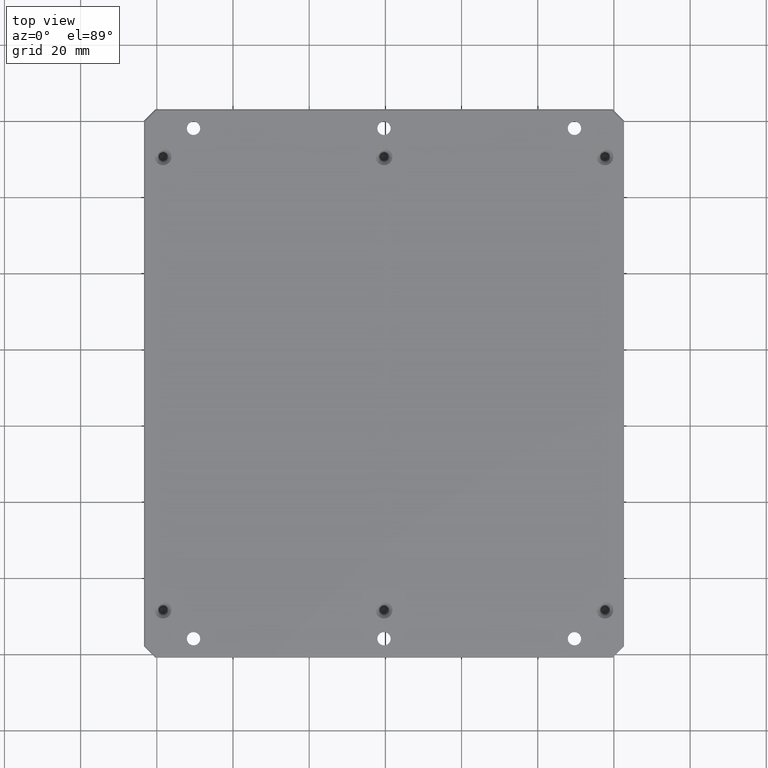
[diagram: clean part render]
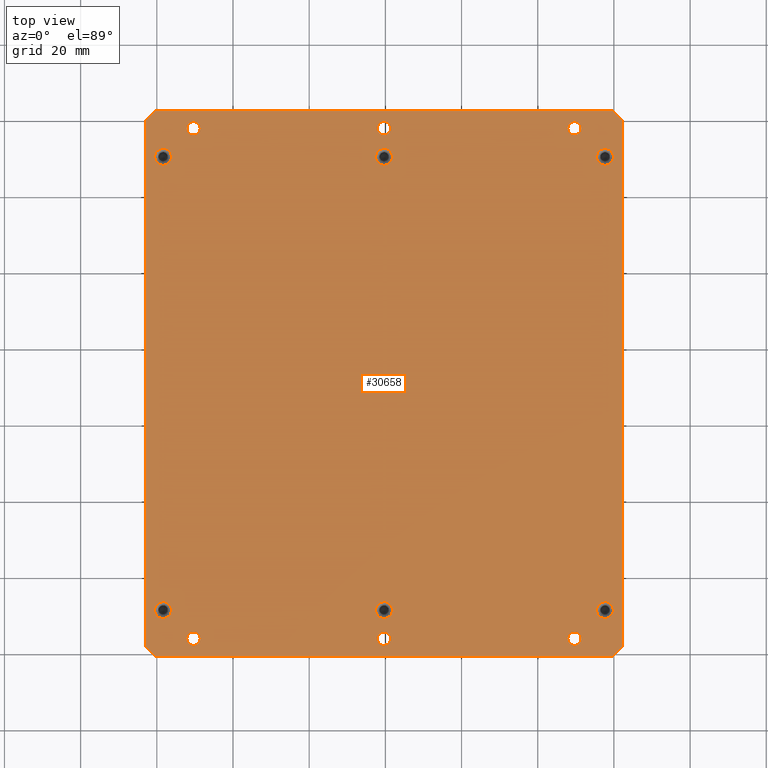
[diagram: same view with one face highlighted and labeled with its STEP entity id]
A machine part, top view. The second image highlights one B-rep face of the part: STEP entity #30658.
In plain terms, the highlighted planar face has unit normal (0, 0, -1).
Its self-contained STEP definition (entity closure, byte-faithful):
#369 = LINE ( 'NONE', #19414, #57661 ) ;
#495 = CIRCLE ( 'NONE', #88703, 2.199999999954772800 ) ;
#516 = EDGE_CURVE ( 'NONE', #23427, #24123, #55156, .T. ) ;
#525 = CARTESIAN_POINT ( 'NONE',  ( 47.89490263459337900, -56.11034746086279100, 12.99999999998362900 ) ) ;
#562 = ORIENTED_EDGE ( 'NONE', *, *, #516, .F. ) ;
#649 = EDGE_CURVE ( 'NONE', #11183, #11592, #41887, .T. ) ;
#2121 = CIRCLE ( 'NONE', #80745, 2.200000000004378900 ) ;
#2669 = EDGE_CURVE ( 'NONE', #17719, #63833, #28514, .T. ) ;
#3384 = FACE_BOUND ( 'NONE', #35318, .T. ) ;
#4174 = DIRECTION ( 'NONE',  ( 1.000000000000000000, 0.0000000000000000000, 0.0000000000000000000 ) ) ;
#4218 = EDGE_LOOP ( 'NONE', ( #74409, #9752 ) ) ;
#4230 = AXIS2_PLACEMENT_3D ( 'NONE', #12245, #33518, #13167 ) ;
#4351 = CIRCLE ( 'NONE', #35480, 1.750000000000001600 ) ;
#4959 = LINE ( 'NONE', #47246, #78888 ) ;
#5200 = CARTESIAN_POINT ( 'NONE',  ( -2.105097365406622100, -56.11034746086279800, 12.99999999998362900 ) ) ;
#5596 = FACE_BOUND ( 'NONE', #12824, .T. ) ;
#6559 = DIRECTION ( 'NONE',  ( -0.7071067811865463500, 0.7071067811865486800, 0.0000000000000000000 ) ) ;
#6693 = LINE ( 'NONE', #51389, #63950 ) ;
#6706 = DIRECTION ( 'NONE',  ( 0.0000000000000000000, 0.0000000000000000000, -1.000000000000000000 ) ) ;
#6741 = EDGE_CURVE ( 'NONE', #21994, #14277, #68914, .T. ) ;
#7127 = CARTESIAN_POINT ( 'NONE',  ( -2.105097365406622100, 77.88965253913718800, 12.99999999998362900 ) ) ;
#7180 = CARTESIAN_POINT ( 'NONE',  ( -58.35509736540660700, -48.61034746086278300, 12.99999999993633500 ) ) ;
#7252 = CARTESIAN_POINT ( 'NONE',  ( -50.35509736540662100, -56.11034746086280500, 12.99999999998362900 ) ) ;
#8252 = ORIENTED_EDGE ( 'NONE', *, *, #72032, .T. ) ;
#8553 = EDGE_LOOP ( 'NONE', ( #41610, #85442 ) ) ;
#8833 = CARTESIAN_POINT ( 'NONE',  ( -0.3550973654066202900, -56.11034746086279800, 12.99999999998362900 ) ) ;
#9030 = EDGE_CURVE ( 'NONE', #52962, #44857, #67121, .T. ) ;
#9059 = CARTESIAN_POINT ( 'NONE',  ( -60.23083329669466900, -60.81034746086277200, 12.99999999998363300 ) ) ;
#9181 = DIRECTION ( 'NONE',  ( 0.7071067811865504600, 0.7071067811865445800, 0.0000000000000000000 ) ) ;
#9531 = EDGE_LOOP ( 'NONE', ( #47013, #62838 ) ) ;
#9752 = ORIENTED_EDGE ( 'NONE', *, *, #87658, .T. ) ;
#9891 = EDGE_CURVE ( 'NONE', #11592, #11183, #495, .T. ) ;
#9952 = CARTESIAN_POINT ( 'NONE',  ( -58.35509736540660700, 70.38965253913731600, 12.99999999993633500 ) ) ;
#10198 = CARTESIAN_POINT ( 'NONE',  ( 59.52063856588142700, -60.81034746086277200, 12.99999999998363300 ) ) ;
#10261 = DIRECTION ( 'NONE',  ( 1.000000000000000000, 0.0000000000000000000, 0.0000000000000000000 ) ) ;
#10829 = CARTESIAN_POINT ( 'NONE',  ( 55.44490263459626800, 70.38965253913708900, 12.99999999987949200 ) ) ;
#11183 = VERTEX_POINT ( 'NONE', #24277 ) ;
#11592 = VERTEX_POINT ( 'NONE', #15919 ) ;
#11637 = EDGE_CURVE ( 'NONE', #12929, #17258, #16940, .T. ) ;
#11733 = VERTEX_POINT ( 'NONE', #30945 ) ;
#11817 = DIRECTION ( 'NONE',  ( 0.0000000000000000000, 0.0000000000000000000, -1.000000000000000000 ) ) ;
#11824 = CIRCLE ( 'NONE', #36032, 2.200000000004351400 ) ;
#11853 = CARTESIAN_POINT ( 'NONE',  ( 55.44490263459626800, -48.61034746086282600, 12.99999999987949200 ) ) ;
#12245 = CARTESIAN_POINT ( 'NONE',  ( -50.35509736540662100, -56.11034746086280500, 12.99999999998362900 ) ) ;
#12824 = EDGE_LOOP ( 'NONE', ( #68040, #26392 ) ) ;
#12929 = VERTEX_POINT ( 'NONE', #10829 ) ;
#13167 = DIRECTION ( 'NONE',  ( 1.000000000000000000, 0.0000000000000000000, 0.0000000000000000000 ) ) ;
#13826 = LINE ( 'NONE', #42278, #77727 ) ;
#13980 = ORIENTED_EDGE ( 'NONE', *, *, #86448, .F. ) ;
#14277 = VERTEX_POINT ( 'NONE', #32782 ) ;
#14952 = ORIENTED_EDGE ( 'NONE', *, *, #86415, .T. ) ;
#15531 = FACE_BOUND ( 'NONE', #49745, .T. ) ;
#15542 = VERTEX_POINT ( 'NONE', #77123 ) ;
#15803 = DIRECTION ( 'NONE',  ( -0.0000000000000000000, 0.0000000000000000000, -1.000000000000000000 ) ) ;
#15919 = CARTESIAN_POINT ( 'NONE',  ( -60.55509736536138400, 70.38965253913731600, 12.99999999993633500 ) ) ;
#16223 = EDGE_CURVE ( 'NONE', #17258, #12929, #41780, .T. ) ;
#16842 = VERTEX_POINT ( 'NONE', #20751 ) ;
#16865 = CIRCLE ( 'NONE', #54542, 2.199999999954772800 ) ;
#16940 = CIRCLE ( 'NONE', #49845, 2.199999999997093200 ) ;
#17049 = CIRCLE ( 'NONE', #48713, 1.750000000000001600 ) ;
#17055 = CARTESIAN_POINT ( 'NONE',  ( 59.52063856588145500, 82.58965253913716300, 12.99999999998362700 ) ) ;
#17258 = VERTEX_POINT ( 'NONE', #69089 ) ;
#17414 = AXIS2_PLACEMENT_3D ( 'NONE', #54201, #82563, #25856 ) ;
#17425 = AXIS2_PLACEMENT_3D ( 'NONE', #8833, #65179, #23595 ) ;
#17719 = VERTEX_POINT ( 'NONE', #5200 ) ;
#17834 = DIRECTION ( 'NONE',  ( 1.000000000000000000, 0.0000000000000000000, 0.0000000000000000000 ) ) ;
#18160 = CARTESIAN_POINT ( 'NONE',  ( -0.3550973654066202900, -56.11034746086279800, 12.99999999998362900 ) ) ;
#18241 = CARTESIAN_POINT ( 'NONE',  ( -0.3550973654066202900, 77.88965253913718800, 12.99999999998362900 ) ) ;
#18352 = DIRECTION ( 'NONE',  ( -0.0000000000000000000, 0.0000000000000000000, -1.000000000000000000 ) ) ;
#18536 = VERTEX_POINT ( 'NONE', #31792 ) ;
#18557 = VERTEX_POINT ( 'NONE', #17055 ) ;
#18681 = CARTESIAN_POINT ( 'NONE',  ( 1.394902634593381300, 77.88965253913718800, 12.99999999998362900 ) ) ;
#19030 = DIRECTION ( 'NONE',  ( -0.0000000000000000000, 0.0000000000000000000, -1.000000000000000000 ) ) ;
#19414 = CARTESIAN_POINT ( 'NONE',  ( 59.52063856588141300, 82.58965253913716300, 12.99999999998362900 ) ) ;
#19561 = DIRECTION ( 'NONE',  ( -0.0000000000000000000, 0.0000000000000000000, -1.000000000000000000 ) ) ;
#19595 = DIRECTION ( 'NONE',  ( 0.0000000000000000000, 0.0000000000000000000, -1.000000000000000000 ) ) ;
#19900 = PLANE ( 'NONE',  #33013 ) ;
#20147 = VERTEX_POINT ( 'NONE', #37037 ) ;
#20751 = CARTESIAN_POINT ( 'NONE',  ( -60.55509736536138400, -48.61034746086278300, 12.99999999993633500 ) ) ;
#21018 = CARTESIAN_POINT ( 'NONE',  ( -0.3550973654066202900, 77.88965253913718800, 12.99999999998362900 ) ) ;
#21153 = DIRECTION ( 'NONE',  ( 0.0000000000000000000, 0.0000000000000000000, -1.000000000000000000 ) ) ;
#21994 = VERTEX_POINT ( 'NONE', #82291 ) ;
#22089 = FACE_BOUND ( 'NONE', #8553, .T. ) ;
#22210 = DIRECTION ( 'NONE',  ( 1.000000000000000000, 0.0000000000000000000, 0.0000000000000000000 ) ) ;
#23427 = VERTEX_POINT ( 'NONE', #65639 ) ;
#23548 = CIRCLE ( 'NONE', #4230, 1.749999999999994700 ) ;
#23595 = DIRECTION ( 'NONE',  ( 1.000000000000000000, 0.0000000000000000000, 0.0000000000000000000 ) ) ;
#24123 = VERTEX_POINT ( 'NONE', #10198 ) ;
#24214 = CARTESIAN_POINT ( 'NONE',  ( -58.35509736540660700, -48.61034746086278300, 12.99999999993633500 ) ) ;
#24251 = VERTEX_POINT ( 'NONE', #32939 ) ;
#24277 = CARTESIAN_POINT ( 'NONE',  ( -56.15509736545183700, 70.38965253913731600, 12.99999999993633500 ) ) ;
#25025 = ORIENTED_EDGE ( 'NONE', *, *, #2669, .T. ) ;
#25107 = DIRECTION ( 'NONE',  ( 1.000000000000000000, 0.0000000000000000000, 0.0000000000000000000 ) ) ;
#25324 = DIRECTION ( 'NONE',  ( 0.0000000000000000000, 0.0000000000000000000, -1.000000000000000000 ) ) ;
#25407 = ORIENTED_EDGE ( 'NONE', *, *, #89159, .T. ) ;
#25543 = CARTESIAN_POINT ( 'NONE',  ( 1.394902634593381300, -56.11034746086279800, 12.99999999998362900 ) ) ;
#25633 = EDGE_LOOP ( 'NONE', ( #25407, #49463 ) ) ;
#25856 = DIRECTION ( 'NONE',  ( 1.000000000000000000, 0.0000000000000000000, 0.0000000000000000000 ) ) ;
#26081 = ORIENTED_EDGE ( 'NONE', *, *, #80218, .T. ) ;
#26350 = AXIS2_PLACEMENT_3D ( 'NONE', #39913, #19030, #61796 ) ;
#26392 = ORIENTED_EDGE ( 'NONE', *, *, #77639, .T. ) ;
#27096 = CIRCLE ( 'NONE', #85438, 1.749999999999994700 ) ;
#27783 = CARTESIAN_POINT ( 'NONE',  ( -60.23083329669466900, -60.81034746086277200, 12.99999999998362900 ) ) ;
#27792 = DIRECTION ( 'NONE',  ( 1.000000000000000000, 0.0000000000000000000, 0.0000000000000000000 ) ) ;
#27946 = DIRECTION ( 'NONE',  ( 1.000000000000000000, 0.0000000000000000000, 0.0000000000000000000 ) ) ;
#28514 = CIRCLE ( 'NONE', #55265, 1.750000000000001600 ) ;
#28598 = VECTOR ( 'NONE', #29247, 1000.000000000000100 ) ;
#29229 = CIRCLE ( 'NONE', #63398, 2.199999999954772800 ) ;
#29247 = DIRECTION ( 'NONE',  ( -0.7071067811865492400, -0.7071067811865458000, 0.0000000000000000000 ) ) ;
#30323 = CIRCLE ( 'NONE', #77356, 1.750000000000001600 ) ;
#30336 = VERTEX_POINT ( 'NONE', #45517 ) ;
#30658 = ADVANCED_FACE ( 'NONE', ( #33181, #5596, #78371, #3384, #22089, #37570, #57363, #36426, #71696, #54147, #15531, #88353, #35392 ), #19900, .F. ) ;
#30750 = AXIS2_PLACEMENT_3D ( 'NONE', #74960, #11817, #82986 ) ;
#30945 = CARTESIAN_POINT ( 'NONE',  ( 62.34490263459334600, 79.76538847042525000, 12.99999999998362700 ) ) ;
#31467 = ORIENTED_EDGE ( 'NONE', *, *, #6741, .T. ) ;
#31792 = CARTESIAN_POINT ( 'NONE',  ( -48.60509736540662800, 77.88965253913718800, 12.99999999998362900 ) ) ;
#31983 = DIRECTION ( 'NONE',  ( 0.0000000000000000000, 0.0000000000000000000, -1.000000000000000000 ) ) ;
#32065 = VECTOR ( 'NONE', #70545, 1000.000000000000000 ) ;
#32324 = EDGE_LOOP ( 'NONE', ( #562, #44186, #62072, #64663, #33486, #14952, #61483, #13980 ) ) ;
#32369 = VERTEX_POINT ( 'NONE', #7127 ) ;
#32612 = DIRECTION ( 'NONE',  ( 0.0000000000000000000, 0.0000000000000000000, -1.000000000000000000 ) ) ;
#32782 = CARTESIAN_POINT ( 'NONE',  ( 47.89490263459335000, 77.88965253913718800, 12.99999999998362900 ) ) ;
#32820 = CARTESIAN_POINT ( 'NONE',  ( -0.3550973654066202900, 70.38965253913720200, 13.00000000005002200 ) ) ;
#32885 = ORIENTED_EDGE ( 'NONE', *, *, #649, .T. ) ;
#32939 = CARTESIAN_POINT ( 'NONE',  ( -63.05509736540659600, 79.76538847042525000, 12.99999999998362600 ) ) ;
#33013 = AXIS2_PLACEMENT_3D ( 'NONE', #90813, #19595, #61462 ) ;
#33181 = FACE_BOUND ( 'NONE', #37632, .T. ) ;
#33318 = EDGE_CURVE ( 'NONE', #37282, #48421, #42179, .T. ) ;
#33486 = ORIENTED_EDGE ( 'NONE', *, *, #34738, .F. ) ;
#33518 = DIRECTION ( 'NONE',  ( 0.0000000000000000000, 0.0000000000000000000, -1.000000000000000000 ) ) ;
#33587 = DIRECTION ( 'NONE',  ( 1.000000000000000000, 0.0000000000000000000, 0.0000000000000000000 ) ) ;
#33733 = ORIENTED_EDGE ( 'NONE', *, *, #60571, .T. ) ;
#34077 = EDGE_CURVE ( 'NONE', #20147, #15542, #2121, .T. ) ;
#34314 = DIRECTION ( 'NONE',  ( -0.0000000000000000000, 0.0000000000000000000, -1.000000000000000000 ) ) ;
#34417 = CIRCLE ( 'NONE', #26350, 2.199999999997093200 ) ;
#34738 = EDGE_CURVE ( 'NONE', #24251, #85020, #6693, .T. ) ;
#35018 = DIRECTION ( 'NONE',  ( 0.0000000000000000000, 0.0000000000000000000, -1.000000000000000000 ) ) ;
#35217 = DIRECTION ( 'NONE',  ( -1.000000000000000000, 0.0000000000000000000, -0.0000000000000000000 ) ) ;
#35318 = EDGE_LOOP ( 'NONE', ( #72725, #46803 ) ) ;
#35392 = FACE_OUTER_BOUND ( 'NONE', #32324, .T. ) ;
#35480 = AXIS2_PLACEMENT_3D ( 'NONE', #46159, #31983, #17834 ) ;
#36032 = AXIS2_PLACEMENT_3D ( 'NONE', #32820, #19561, #82163 ) ;
#36426 = FACE_BOUND ( 'NONE', #40000, .T. ) ;
#36604 = CARTESIAN_POINT ( 'NONE',  ( -63.35509736540663500, 82.58965253913716300, 12.99999999998362900 ) ) ;
#36897 = DIRECTION ( 'NONE',  ( 1.000000000000000000, -0.0000000000000000000, 0.0000000000000000000 ) ) ;
#37037 = CARTESIAN_POINT ( 'NONE',  ( 1.844902634597731100, -48.61034746086278300, 13.00000000005002200 ) ) ;
#37282 = VERTEX_POINT ( 'NONE', #84082 ) ;
#37570 = FACE_BOUND ( 'NONE', #72657, .T. ) ;
#37632 = EDGE_LOOP ( 'NONE', ( #8252, #54964 ) ) ;
#37690 = EDGE_CURVE ( 'NONE', #53410, #80465, #77930, .T. ) ;
#38192 = DIRECTION ( 'NONE',  ( -0.0000000000000000000, 0.0000000000000000000, -1.000000000000000000 ) ) ;
#38497 = VERTEX_POINT ( 'NONE', #78387 ) ;
#39006 = EDGE_CURVE ( 'NONE', #23427, #11733, #69550, .T. ) ;
#39913 = CARTESIAN_POINT ( 'NONE',  ( 57.64490263459336500, -48.61034746086282600, 12.99999999987949200 ) ) ;
#40000 = EDGE_LOOP ( 'NONE', ( #76276, #25025 ) ) ;
#40253 = DIRECTION ( 'NONE',  ( 1.000000000000000000, 0.0000000000000000000, 0.0000000000000000000 ) ) ;
#40798 = CARTESIAN_POINT ( 'NONE',  ( 59.84490263459045400, -48.61034746086282600, 12.99999999987949200 ) ) ;
#41610 = ORIENTED_EDGE ( 'NONE', *, *, #73821, .T. ) ;
#41780 = CIRCLE ( 'NONE', #70420, 2.199999999997093200 ) ;
#41887 = CIRCLE ( 'NONE', #91085, 2.199999999954772800 ) ;
#41981 = DIRECTION ( 'NONE',  ( 0.0000000000000000000, 0.0000000000000000000, -1.000000000000000000 ) ) ;
#42179 = CIRCLE ( 'NONE', #77714, 1.749999999999994700 ) ;
#42239 = EDGE_CURVE ( 'NONE', #63833, #17719, #65263, .T. ) ;
#42278 = CARTESIAN_POINT ( 'NONE',  ( -63.35509736540663500, -60.81034746086277200, 12.99999999998362900 ) ) ;
#42990 = CIRCLE ( 'NONE', #46843, 1.750000000000001600 ) ;
#43417 = ORIENTED_EDGE ( 'NONE', *, *, #9891, .T. ) ;
#43701 = VERTEX_POINT ( 'NONE', #81501 ) ;
#44186 = ORIENTED_EDGE ( 'NONE', *, *, #39006, .T. ) ;
#44738 = VERTEX_POINT ( 'NONE', #18681 ) ;
#44857 = VERTEX_POINT ( 'NONE', #40798 ) ;
#45517 = CARTESIAN_POINT ( 'NONE',  ( 51.39490263459338600, -56.11034746086279100, 12.99999999998362900 ) ) ;
#45653 = AXIS2_PLACEMENT_3D ( 'NONE', #47697, #75430, #40253 ) ;
#45755 = CARTESIAN_POINT ( 'NONE',  ( 57.64490263459336500, 70.38965253913708900, 12.99999999987949200 ) ) ;
#46159 = CARTESIAN_POINT ( 'NONE',  ( 49.64490263459338600, -56.11034746086279100, 12.99999999998362900 ) ) ;
#46803 = ORIENTED_EDGE ( 'NONE', *, *, #11637, .T. ) ;
#46843 = AXIS2_PLACEMENT_3D ( 'NONE', #69874, #21153, #76967 ) ;
#46882 = AXIS2_PLACEMENT_3D ( 'NONE', #48915, #6706, #27946 ) ;
#47013 = ORIENTED_EDGE ( 'NONE', *, *, #88771, .T. ) ;
#47246 = CARTESIAN_POINT ( 'NONE',  ( -63.05509736540659600, 82.88965253913721700, 12.99999999998362600 ) ) ;
#47697 = CARTESIAN_POINT ( 'NONE',  ( -0.3550973654066480500, -48.61034746086278300, 13.00000000005002200 ) ) ;
#48147 = DIRECTION ( 'NONE',  ( -0.0000000000000000000, -1.000000000000000000, -0.0000000000000000000 ) ) ;
#48421 = VERTEX_POINT ( 'NONE', #61493 ) ;
#48713 = AXIS2_PLACEMENT_3D ( 'NONE', #18241, #25324, #53954 ) ;
#48915 = CARTESIAN_POINT ( 'NONE',  ( 49.64490263459335800, 77.88965253913718800, 12.99999999998362900 ) ) ;
#49463 = ORIENTED_EDGE ( 'NONE', *, *, #86435, .T. ) ;
#49745 = EDGE_LOOP ( 'NONE', ( #31467, #33733 ) ) ;
#49845 = AXIS2_PLACEMENT_3D ( 'NONE', #45755, #66372, #25107 ) ;
#51389 = CARTESIAN_POINT ( 'NONE',  ( -63.05509736540661000, 79.76538847042525000, 12.99999999998362900 ) ) ;
#52962 = VERTEX_POINT ( 'NONE', #11853 ) ;
#53020 = CARTESIAN_POINT ( 'NONE',  ( -60.23083329669466900, 82.58965253913716300, 12.99999999998362900 ) ) ;
#53272 = DIRECTION ( 'NONE',  ( 1.000000000000000000, 0.0000000000000000000, 0.0000000000000000000 ) ) ;
#53334 = AXIS2_PLACEMENT_3D ( 'NONE', #76421, #84120, #33587 ) ;
#53410 = VERTEX_POINT ( 'NONE', #78973 ) ;
#53954 = DIRECTION ( 'NONE',  ( 1.000000000000000000, 0.0000000000000000000, 0.0000000000000000000 ) ) ;
#54147 = FACE_BOUND ( 'NONE', #4218, .T. ) ;
#54201 = CARTESIAN_POINT ( 'NONE',  ( -0.3550973654066202900, 70.38965253913720200, 13.00000000005002200 ) ) ;
#54277 = EDGE_CURVE ( 'NONE', #18536, #38497, #85975, .T. ) ;
#54478 = CIRCLE ( 'NONE', #45653, 2.200000000004378900 ) ;
#54542 = AXIS2_PLACEMENT_3D ( 'NONE', #24214, #18352, #4174 ) ;
#54779 = CARTESIAN_POINT ( 'NONE',  ( 57.64490263459336500, -48.61034746086282600, 12.99999999987949200 ) ) ;
#54813 = ORIENTED_EDGE ( 'NONE', *, *, #59485, .T. ) ;
#54964 = ORIENTED_EDGE ( 'NONE', *, *, #9030, .T. ) ;
#55156 = LINE ( 'NONE', #57585, #28598 ) ;
#55265 = AXIS2_PLACEMENT_3D ( 'NONE', #18160, #32612, #53272 ) ;
#56956 = CARTESIAN_POINT ( 'NONE',  ( 62.34490263459334600, 82.88965253913721700, 12.99999999998362900 ) ) ;
#57363 = FACE_BOUND ( 'NONE', #25633, .T. ) ;
#57585 = CARTESIAN_POINT ( 'NONE',  ( 62.34490263459334600, -57.98608339215085300, 12.99999999998362900 ) ) ;
#57661 = VECTOR ( 'NONE', #68708, 1000.000000000000100 ) ;
#58494 = DIRECTION ( 'NONE',  ( 1.000000000000000000, 0.0000000000000000000, 0.0000000000000000000 ) ) ;
#58577 = DIRECTION ( 'NONE',  ( -0.0000000000000000000, 0.0000000000000000000, -1.000000000000000000 ) ) ;
#58657 = EDGE_LOOP ( 'NONE', ( #86873, #54813 ) ) ;
#59295 = CARTESIAN_POINT ( 'NONE',  ( 1.844902634597731100, 70.38965253913720200, 13.00000000005002200 ) ) ;
#59485 = EDGE_CURVE ( 'NONE', #48421, #37282, #23548, .T. ) ;
#60571 = EDGE_CURVE ( 'NONE', #14277, #21994, #42990, .T. ) ;
#61462 = DIRECTION ( 'NONE',  ( -1.000000000000000000, 0.0000000000000000000, -0.0000000000000000000 ) ) ;
#61483 = ORIENTED_EDGE ( 'NONE', *, *, #66691, .F. ) ;
#61493 = CARTESIAN_POINT ( 'NONE',  ( -52.10509736540662100, -56.11034746086280500, 12.99999999998362900 ) ) ;
#61796 = DIRECTION ( 'NONE',  ( 1.000000000000000000, 0.0000000000000000000, 0.0000000000000000000 ) ) ;
#61842 = DIRECTION ( 'NONE',  ( -0.0000000000000000000, 0.0000000000000000000, -1.000000000000000000 ) ) ;
#62072 = ORIENTED_EDGE ( 'NONE', *, *, #84001, .F. ) ;
#62838 = ORIENTED_EDGE ( 'NONE', *, *, #78004, .T. ) ;
#63355 = VERTEX_POINT ( 'NONE', #90380 ) ;
#63398 = AXIS2_PLACEMENT_3D ( 'NONE', #7180, #34314, #69751 ) ;
#63821 = LINE ( 'NONE', #27783, #73784 ) ;
#63833 = VERTEX_POINT ( 'NONE', #25543 ) ;
#63950 = VECTOR ( 'NONE', #9181, 1000.000000000000100 ) ;
#64663 = ORIENTED_EDGE ( 'NONE', *, *, #87970, .F. ) ;
#65179 = DIRECTION ( 'NONE',  ( 0.0000000000000000000, 0.0000000000000000000, -1.000000000000000000 ) ) ;
#65263 = CIRCLE ( 'NONE', #17425, 1.750000000000001600 ) ;
#65639 = CARTESIAN_POINT ( 'NONE',  ( 62.34490263459334600, -57.98608339215086700, 12.99999999998362900 ) ) ;
#66372 = DIRECTION ( 'NONE',  ( -0.0000000000000000000, 0.0000000000000000000, -1.000000000000000000 ) ) ;
#66691 = EDGE_CURVE ( 'NONE', #79179, #63355, #63821, .T. ) ;
#67121 = CIRCLE ( 'NONE', #88040, 2.199999999997093200 ) ;
#68040 = ORIENTED_EDGE ( 'NONE', *, *, #34077, .T. ) ;
#68708 = DIRECTION ( 'NONE',  ( 0.7071067811865492400, -0.7071067811865458000, 0.0000000000000000000 ) ) ;
#68914 = CIRCLE ( 'NONE', #46882, 1.750000000000001600 ) ;
#69089 = CARTESIAN_POINT ( 'NONE',  ( 59.84490263459045400, 70.38965253913708900, 12.99999999987949200 ) ) ;
#69266 = DIRECTION ( 'NONE',  ( -0.0000000000000000000, 0.0000000000000000000, -1.000000000000000000 ) ) ;
#69550 = LINE ( 'NONE', #56956, #32065 ) ;
#69751 = DIRECTION ( 'NONE',  ( 1.000000000000000000, 0.0000000000000000000, 0.0000000000000000000 ) ) ;
#69874 = CARTESIAN_POINT ( 'NONE',  ( 49.64490263459335800, 77.88965253913718800, 12.99999999998362900 ) ) ;
#70420 = AXIS2_PLACEMENT_3D ( 'NONE', #76359, #69266, #90882 ) ;
#70545 = DIRECTION ( 'NONE',  ( 0.0000000000000000000, 1.000000000000000000, 0.0000000000000000000 ) ) ;
#71696 = FACE_BOUND ( 'NONE', #58657, .T. ) ;
#72032 = EDGE_CURVE ( 'NONE', #44857, #52962, #34417, .T. ) ;
#72657 = EDGE_LOOP ( 'NONE', ( #32885, #43417 ) ) ;
#72725 = ORIENTED_EDGE ( 'NONE', *, *, #16223, .T. ) ;
#73784 = VECTOR ( 'NONE', #6559, 1000.000000000000100 ) ;
#73821 = EDGE_CURVE ( 'NONE', #80465, #53410, #11824, .T. ) ;
#74409 = ORIENTED_EDGE ( 'NONE', *, *, #82522, .T. ) ;
#74960 = CARTESIAN_POINT ( 'NONE',  ( -50.35509736540662100, 77.88965253913718800, 12.99999999998362900 ) ) ;
#75430 = DIRECTION ( 'NONE',  ( -0.0000000000000000000, 0.0000000000000000000, -1.000000000000000000 ) ) ;
#76276 = ORIENTED_EDGE ( 'NONE', *, *, #42239, .T. ) ;
#76359 = CARTESIAN_POINT ( 'NONE',  ( 57.64490263459336500, 70.38965253913708900, 12.99999999987949200 ) ) ;
#76421 = CARTESIAN_POINT ( 'NONE',  ( 49.64490263459338600, -56.11034746086279100, 12.99999999998362900 ) ) ;
#76967 = DIRECTION ( 'NONE',  ( 1.000000000000000000, 0.0000000000000000000, 0.0000000000000000000 ) ) ;
#77123 = CARTESIAN_POINT ( 'NONE',  ( -2.555097365411027200, -48.61034746086278300, 13.00000000005002200 ) ) ;
#77356 = AXIS2_PLACEMENT_3D ( 'NONE', #21018, #41981, #27792 ) ;
#77639 = EDGE_CURVE ( 'NONE', #15542, #20147, #54478, .T. ) ;
#77714 = AXIS2_PLACEMENT_3D ( 'NONE', #7252, #35018, #84321 ) ;
#77727 = VECTOR ( 'NONE', #35217, 1000.000000000000000 ) ;
#77930 = CIRCLE ( 'NONE', #17414, 2.200000000004351400 ) ;
#78004 = EDGE_CURVE ( 'NONE', #16842, #43701, #16865, .T. ) ;
#78371 = FACE_BOUND ( 'NONE', #9531, .T. ) ;
#78387 = CARTESIAN_POINT ( 'NONE',  ( -52.10509736540662100, 77.88965253913718800, 12.99999999998362900 ) ) ;
#78645 = CARTESIAN_POINT ( 'NONE',  ( -0.3550973654066480500, -48.61034746086278300, 13.00000000005002200 ) ) ;
#78888 = VECTOR ( 'NONE', #48147, 1000.000000000000000 ) ;
#78973 = CARTESIAN_POINT ( 'NONE',  ( -2.555097365410971700, 70.38965253913720200, 13.00000000005002200 ) ) ;
#79179 = VERTEX_POINT ( 'NONE', #9059 ) ;
#80218 = EDGE_CURVE ( 'NONE', #38497, #18536, #27096, .T. ) ;
#80465 = VERTEX_POINT ( 'NONE', #59295 ) ;
#80745 = AXIS2_PLACEMENT_3D ( 'NONE', #78645, #15803, #22210 ) ;
#81501 = CARTESIAN_POINT ( 'NONE',  ( -56.15509736545183700, -48.61034746086278300, 12.99999999993633500 ) ) ;
#82163 = DIRECTION ( 'NONE',  ( 1.000000000000000000, 0.0000000000000000000, 0.0000000000000000000 ) ) ;
#82291 = CARTESIAN_POINT ( 'NONE',  ( 51.39490263459335800, 77.88965253913718800, 12.99999999998362900 ) ) ;
#82341 = ORIENTED_EDGE ( 'NONE', *, *, #54277, .T. ) ;
#82522 = EDGE_CURVE ( 'NONE', #30336, #85385, #4351, .T. ) ;
#82563 = DIRECTION ( 'NONE',  ( -0.0000000000000000000, 0.0000000000000000000, -1.000000000000000000 ) ) ;
#82986 = DIRECTION ( 'NONE',  ( 1.000000000000000000, 0.0000000000000000000, 0.0000000000000000000 ) ) ;
#83140 = DIRECTION ( 'NONE',  ( 1.000000000000000000, 0.0000000000000000000, 0.0000000000000000000 ) ) ;
#84001 = EDGE_CURVE ( 'NONE', #18557, #11733, #369, .T. ) ;
#84054 = CARTESIAN_POINT ( 'NONE',  ( -50.35509736540662100, 77.88965253913718800, 12.99999999998362900 ) ) ;
#84056 = DIRECTION ( 'NONE',  ( 1.000000000000000000, 0.0000000000000000000, 0.0000000000000000000 ) ) ;
#84082 = CARTESIAN_POINT ( 'NONE',  ( -48.60509736540662800, -56.11034746086280500, 12.99999999998362900 ) ) ;
#84120 = DIRECTION ( 'NONE',  ( 0.0000000000000000000, 0.0000000000000000000, -1.000000000000000000 ) ) ;
#84321 = DIRECTION ( 'NONE',  ( 1.000000000000000000, 0.0000000000000000000, 0.0000000000000000000 ) ) ;
#85020 = VERTEX_POINT ( 'NONE', #53020 ) ;
#85385 = VERTEX_POINT ( 'NONE', #525 ) ;
#85438 = AXIS2_PLACEMENT_3D ( 'NONE', #84054, #91504, #83140 ) ;
#85442 = ORIENTED_EDGE ( 'NONE', *, *, #37690, .T. ) ;
#85975 = CIRCLE ( 'NONE', #30750, 1.749999999999994700 ) ;
#85983 = EDGE_LOOP ( 'NONE', ( #82341, #26081 ) ) ;
#86415 = EDGE_CURVE ( 'NONE', #24251, #63355, #4959, .T. ) ;
#86435 = EDGE_CURVE ( 'NONE', #32369, #44738, #30323, .T. ) ;
#86448 = EDGE_CURVE ( 'NONE', #24123, #79179, #13826, .T. ) ;
#86873 = ORIENTED_EDGE ( 'NONE', *, *, #33318, .T. ) ;
#87055 = CIRCLE ( 'NONE', #53334, 1.750000000000001600 ) ;
#87658 = EDGE_CURVE ( 'NONE', #85385, #30336, #87055, .T. ) ;
#87887 = CARTESIAN_POINT ( 'NONE',  ( -58.35509736540660700, 70.38965253913731600, 12.99999999993633500 ) ) ;
#87970 = EDGE_CURVE ( 'NONE', #85020, #18557, #91318, .T. ) ;
#88040 = AXIS2_PLACEMENT_3D ( 'NONE', #54779, #61842, #84056 ) ;
#88353 = FACE_BOUND ( 'NONE', #85983, .T. ) ;
#88703 = AXIS2_PLACEMENT_3D ( 'NONE', #9952, #58577, #10261 ) ;
#88771 = EDGE_CURVE ( 'NONE', #43701, #16842, #29229, .T. ) ;
#89159 = EDGE_CURVE ( 'NONE', #44738, #32369, #17049, .T. ) ;
#90239 = VECTOR ( 'NONE', #36897, 1000.000000000000000 ) ;
#90380 = CARTESIAN_POINT ( 'NONE',  ( -63.05509736540661000, -57.98608339215083200, 12.99999999998362900 ) ) ;
#90813 = CARTESIAN_POINT ( 'NONE',  ( -63.35509736540663500, 82.88965253913721700, 12.99999999998362900 ) ) ;
#90882 = DIRECTION ( 'NONE',  ( 1.000000000000000000, 0.0000000000000000000, 0.0000000000000000000 ) ) ;
#91085 = AXIS2_PLACEMENT_3D ( 'NONE', #87887, #38192, #58494 ) ;
#91318 = LINE ( 'NONE', #36604, #90239 ) ;
#91504 = DIRECTION ( 'NONE',  ( 0.0000000000000000000, 0.0000000000000000000, -1.000000000000000000 ) ) ;